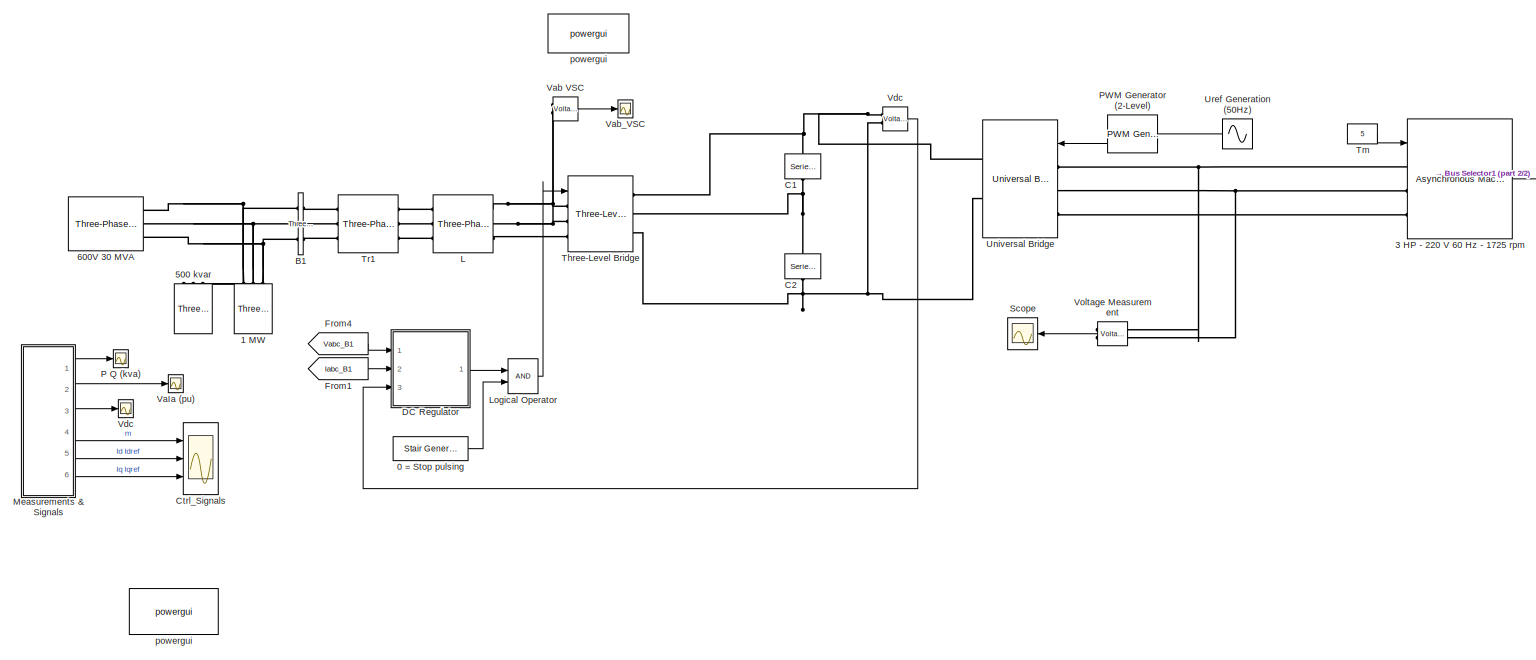
[diagram: root canvas - part 1/2, most of the canvas]
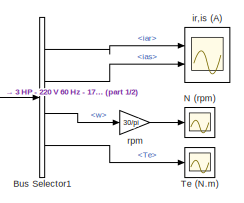
[diagram: root canvas - part 2/2, top right region]
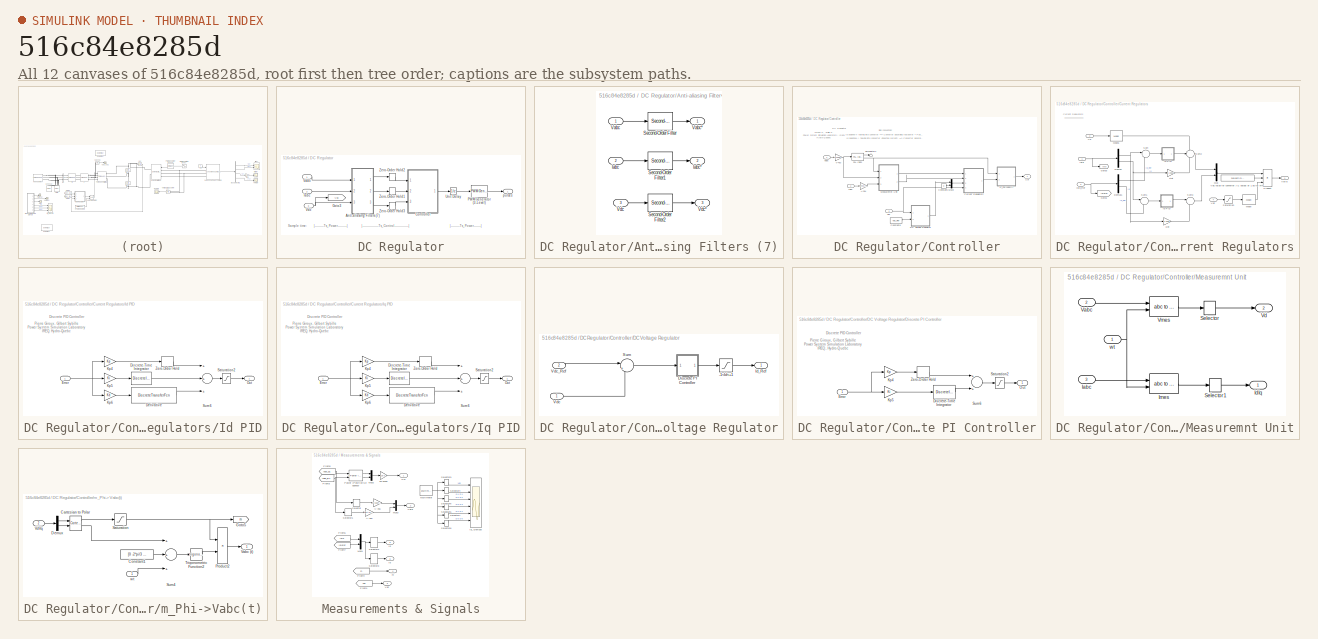
[diagram: thumbnail index - all 12 canvases of the model, root first then tree order]
MODEL slx_516c84e8285d
KIND model
CONFIG AbsTol = .05
CONFIG FixedStep = 0.001
CONFIG MaxStep = 1e-4
CONFIG MinStep = 1e-6
CONFIG RelTol = 1e-3
CONFIG SampleTimeConstraint = Unconstrained
CONFIG Solver = VariableStepAuto
CONFIG SolverMode = Auto
CONFIG SolverName = VariableStepAuto
CONFIG StartTime = 0.0
CONFIG StopTime = 3
BLOCK [Reference] 0 = Stop pulsing  REF=powerlib_meascontrol/Pulse & Signal
Generators/Stair
Generator
  Ports = [0, 1]
  SourceBlock = powerlib_meascontrol/Pulse & Signal\nGenerators/Stair\nGenerator
  SourceType = Stair Generator
BLOCK [Reference] 1 MW  REF=powerlib/Elements/Three-Phase
Series RLC Load
  AttributesFormatString = \n
  Ports = [0, 0, 0, 0, 0, 3]
  SourceBlock = powerlib/Elements/Three-Phase\nSeries RLC Load
  SourceType = Three-Phase Series RLC Load
BLOCK [Reference] 3 HP - 220 V 60 Hz - 1725 rpm  REF=powerlib/Machines/Asynchronous Machine
SI Units
  AttributesFormatString = \n
  Ports = [1, 1, 0, 0, 0, 3]
  SourceBlock = powerlib/Machines/Asynchronous Machine\nSI Units
  SourceType = Asynchronous Machine
BLOCK [Reference] 500 kvar  REF=powerlib/Elements/Three-Phase
Series RLC Load
  AttributesFormatString = \n
  Ports = [0, 0, 0, 0, 0, 3]
  SourceBlock = powerlib/Elements/Three-Phase\nSeries RLC Load
  SourceType = Three-Phase Series RLC Load
BLOCK [Reference] 600V 30 MVA  REF=powerlib/Electrical
Sources/Three-Phase Source
  Ports = [0, 0, 0, 0, 0, 0, 3]
  SourceBlock = powerlib/Electrical\nSources/Three-Phase Source
  SourceType = Three-Phase Source
BLOCK [Reference] B1  REF=powerlib/Measurements/Three-Phase
V-I Measurement
  Ports = [0, 0, 0, 0, 0, 3, 3]
  SourceBlock = powerlib/Measurements/Three-Phase\nV-I Measurement
  SourceType = Three-Phase VI Measurement
BLOCK [BusSelector] Bus Selector1
  OutputSignals = iar,ias,w,Te
  Ports = [1, 4]
BLOCK [Reference] C1  REF=powerlib/Elements/Series RLC Branch
  AttributesFormatString = \n
  Ports = [0, 0, 0, 0, 0, 1, 1]
  SourceBlock = powerlib/Elements/Series RLC Branch
  SourceType = Series RLC Branch
BLOCK [Reference] C2  REF=powerlib/Elements/Series RLC Branch
  AttributesFormatString = \n
  Ports = [0, 0, 0, 0, 0, 1, 1]
  SourceBlock = powerlib/Elements/Series RLC Branch
  SourceType = Series RLC Branch
BLOCK [Scope] Ctrl_Signals
  Floating = off
  NumInputPorts = 3
  Ports = [3]
  ScopeSpecificationString = Simulink.scopes.TimeScopeBlockCfg('CurrentConfiguration', extmgr.ConfigurationSet(extmgr.Configuration('Core','General UI',true),extmgr.Configuration('Core','Source UI',true),extmgr.Configuration('Sources','WiredSimulink',true,'DataLoggingVariableName','ScopeData1','SampleTime','Ts_Control','DataLoggingSaveFormat','Array','DataLoggingDecimation','1','DataLoggingDecimateData',true),extmgr.Configura...<+3070ch>
BLOCK [SubSystem] DC Regulator
  Ports = [3, 1]
  RequestExecContextInheritance = off
BLOCK [SubSystem] DC Regulator/Anti-aliasing Filters (7)
  Ports = [3, 3]
  RequestExecContextInheritance = off
BLOCK [Outport] DC Regulator/Anti-aliasing Filters (7)/ Vabc*
  IconDisplay = Port number
BLOCK [Outport] DC Regulator/Anti-aliasing Filters (7)/ Vdc*
  IconDisplay = Port number
  Port = 3
BLOCK [Inport] DC Regulator/Anti-aliasing Filters (7)/Iabc 
  IconDisplay = Port number
  Port = 2
  PortDimensions = 3
BLOCK [Outport] DC Regulator/Anti-aliasing Filters (7)/Iabc*
  IconDisplay = Port number
  Port = 2
BLOCK [Reference] DC Regulator/Anti-aliasing Filters (7)/Second-Order Filter  REF=powerlib_meascontrol/Filters/Second-Order
Filter
  Ports = [1, 1]
  SourceBlock = powerlib_meascontrol/Filters/Second-Order\nFilter
  SourceType = Second-Order Filter
BLOCK [Reference] DC Regulator/Anti-aliasing Filters (7)/Second-Order Filter1  REF=powerlib_meascontrol/Filters/Second-Order
Filter
  Ports = [1, 1]
  SourceBlock = powerlib_meascontrol/Filters/Second-Order\nFilter
  SourceType = Second-Order Filter
BLOCK [Reference] DC Regulator/Anti-aliasing Filters (7)/Second-Order Filter2  REF=powerlib_meascontrol/Filters/Second-Order
Filter
  Ports = [1, 1]
  SourceBlock = powerlib_meascontrol/Filters/Second-Order\nFilter
  SourceType = Second-Order Filter
BLOCK [Inport] DC Regulator/Anti-aliasing Filters (7)/Vabc
  IconDisplay = Port number
  PortDimensions = 3
BLOCK [Inport] DC Regulator/Anti-aliasing Filters (7)/Vdc 
  IconDisplay = Port number
  Port = 3
  PortDimensions = 1
BLOCK [SubSystem] DC Regulator/Controller
  Ports = [3, 1]
  RequestExecContextInheritance = off
BLOCK [Gain] DC Regulator/Controller/A->pu
  Gain = sqrt(3)*Vnom/sqrt(2)/Pnom
BLOCK [Constant] DC Regulator/Controller/Constant1
  Value = 0
BLOCK [Constant] DC Regulator/Controller/Constant6
  Value = Vdc_Ref
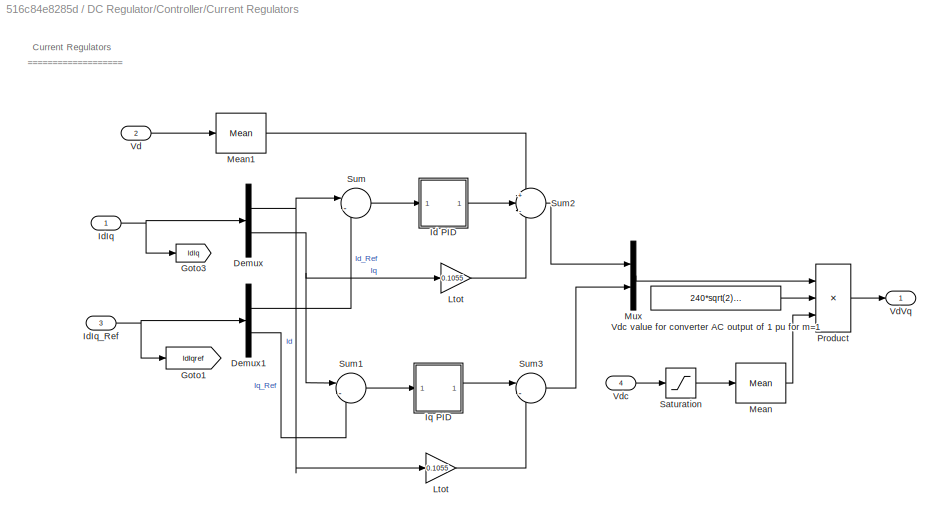
BLOCK [SubSystem] DC Regulator/Controller/Current Regulators
  Ports = [4, 1]
  RequestExecContextInheritance = off
BLOCK [Gain] DC Regulator/Controller/Current Regulators/ Ltot
  Gain = 0.1055
BLOCK [Demux] DC Regulator/Controller/Current Regulators/Demux
  Outputs = 2
  Ports = [1, 2]
BLOCK [Demux] DC Regulator/Controller/Current Regulators/Demux1
  Outputs = 2
  Ports = [1, 2]
BLOCK [Goto] DC Regulator/Controller/Current Regulators/Goto1
  GotoTag = IdIqref
  TagVisibility = global
BLOCK [Goto] DC Regulator/Controller/Current Regulators/Goto3
  GotoTag = IdIq
  TagVisibility = global
BLOCK [SubSystem] DC Regulator/Controller/Current Regulators/Id PID
  DialogController = POWERSYS.PowerSysDialog
  Ports = [1, 1]
  RequestExecContextInheritance = off
BLOCK [DiscreteTransferFcn] DC Regulator/Controller/Current Regulators/Id PID/Derivative 
  Denominator = [Ts+2*TcD Ts-2*TcD]
  InputPortMap = u0
  Numerator = [2 -2]
  Ports = [1, 1]
  SampleTime = Ts
BLOCK [DiscreteIntegrator] DC Regulator/Controller/Current Regulators/Id PID/Discrete-Time Integrator
  ICPrevOutput = DiscIntNeverNeededParam
  ICPrevScaledInput = DiscIntNeverNeededParam
  InitialCondition = Init
  LimitOutput = on
  LowerSaturationLimit = LowerLimit
  Ports = [1, 1]
  SampleTime = Ts
  UpperSaturationLimit = UpperLimit
BLOCK [Inport] DC Regulator/Controller/Current Regulators/Id PID/Error
  IconDisplay = Port number
  SampleTime = Ts
BLOCK [Gain] DC Regulator/Controller/Current Regulators/Id PID/Kp4
  Gain = Kp
  SampleTime = Ts
BLOCK [Gain] DC Regulator/Controller/Current Regulators/Id PID/Kp5
  Gain = Ki
  SampleTime = Ts
BLOCK [Gain] DC Regulator/Controller/Current Regulators/Id PID/Kp6
  Gain = Kd
  SampleTime = Ts
BLOCK [Outport] DC Regulator/Controller/Current Regulators/Id PID/Out
  IconDisplay = Port number
  InitialOutput = 0
  SampleTime = Ts
BLOCK [Saturate] DC Regulator/Controller/Current Regulators/Id PID/Saturation2
  InputPortMap = u0
  LowerLimit = LowerLimit
  Ports = [1, 1]
  SampleTime = Ts
  UpperLimit = UpperLimit
BLOCK [Sum] DC Regulator/Controller/Current Regulators/Id PID/Sum6
  Inputs = +++
  Ports = [3, 1]
  SampleTime = Ts
BLOCK [ZeroOrderHold] DC Regulator/Controller/Current Regulators/Id PID/Zero-Order Hold
  SampleTime = Ts
BLOCK [Inport] DC Regulator/Controller/Current Regulators/IdIq
  IconDisplay = Port number
  PortDimensions = 2
BLOCK [Inport] DC Regulator/Controller/Current Regulators/IdIq_Ref
  IconDisplay = Port number
  Port = 3
  PortDimensions = 2
BLOCK [SubSystem] DC Regulator/Controller/Current Regulators/Iq PID
  DialogController = POWERSYS.PowerSysDialog
  Ports = [1, 1]
  RequestExecContextInheritance = off
BLOCK [DiscreteTransferFcn] DC Regulator/Controller/Current Regulators/Iq PID/Derivative 
  Denominator = [Ts+2*TcD Ts-2*TcD]
  InputPortMap = u0
  Numerator = [2 -2]
  Ports = [1, 1]
  SampleTime = Ts
BLOCK [DiscreteIntegrator] DC Regulator/Controller/Current Regulators/Iq PID/Discrete-Time Integrator
  ICPrevOutput = DiscIntNeverNeededParam
  ICPrevScaledInput = DiscIntNeverNeededParam
  InitialCondition = Init
  LimitOutput = on
  LowerSaturationLimit = LowerLimit
  Ports = [1, 1]
  SampleTime = Ts
  UpperSaturationLimit = UpperLimit
BLOCK [Inport] DC Regulator/Controller/Current Regulators/Iq PID/Error
  IconDisplay = Port number
  SampleTime = Ts
BLOCK [Gain] DC Regulator/Controller/Current Regulators/Iq PID/Kp4
  Gain = Kp
  SampleTime = Ts
BLOCK [Gain] DC Regulator/Controller/Current Regulators/Iq PID/Kp5
  Gain = Ki
  SampleTime = Ts
BLOCK [Gain] DC Regulator/Controller/Current Regulators/Iq PID/Kp6
  Gain = Kd
  SampleTime = Ts
BLOCK [Outport] DC Regulator/Controller/Current Regulators/Iq PID/Out
  IconDisplay = Port number
  InitialOutput = 0
  SampleTime = Ts
BLOCK [Saturate] DC Regulator/Controller/Current Regulators/Iq PID/Saturation2
  InputPortMap = u0
  LowerLimit = LowerLimit
  Ports = [1, 1]
  SampleTime = Ts
  UpperLimit = UpperLimit
BLOCK [Sum] DC Regulator/Controller/Current Regulators/Iq PID/Sum6
  Inputs = +++
  Ports = [3, 1]
  SampleTime = Ts
BLOCK [ZeroOrderHold] DC Regulator/Controller/Current Regulators/Iq PID/Zero-Order Hold
  SampleTime = Ts
BLOCK [Gain] DC Regulator/Controller/Current Regulators/Ltot 
  Gain = 0.1055
BLOCK [Reference] DC Regulator/Controller/Current Regulators/Mean  REF=powerlib_meascontrol/Measurements/Mean
  Ports = [1, 1]
  SourceBlock = powerlib_meascontrol/Measurements/Mean
  SourceType = Mean
BLOCK [Reference] DC Regulator/Controller/Current Regulators/Mean1  REF=powerlib_meascontrol/Measurements/Mean
  Ports = [1, 1]
  SourceBlock = powerlib_meascontrol/Measurements/Mean
  SourceType = Mean
BLOCK [Mux] DC Regulator/Controller/Current Regulators/Mux
  DisplayOption = bar
  Inputs = 2
  Ports = [2, 1]
BLOCK [Product] DC Regulator/Controller/Current Regulators/Product
  Inputs = **/
  Ports = [3, 1]
  RndMeth = Floor
BLOCK [Saturate] DC Regulator/Controller/Current Regulators/Saturation
  InputPortMap = u0
  LowerLimit = 10
  Ports = [1, 1]
  UpperLimit = 10000
BLOCK [Sum] DC Regulator/Controller/Current Regulators/Sum
  IconShape = round
  Inputs = |-+
  Ports = [2, 1]
BLOCK [Sum] DC Regulator/Controller/Current Regulators/Sum1
  IconShape = round
  Inputs = |-+
  Ports = [2, 1]
BLOCK [Sum] DC Regulator/Controller/Current Regulators/Sum2
  IconShape = round
  Inputs = +|-|+
  Ports = [3, 1]
BLOCK [Sum] DC Regulator/Controller/Current Regulators/Sum3
  IconShape = round
  Inputs = |--
  Ports = [2, 1]
BLOCK [Inport] DC Regulator/Controller/Current Regulators/Vd
  IconDisplay = Port number
  Port = 2
BLOCK [Outport] DC Regulator/Controller/Current Regulators/VdVq
  IconDisplay = Port number
BLOCK [Inport] DC Regulator/Controller/Current Regulators/Vdc
  IconDisplay = Port number
  Port = 4
BLOCK [Constant] DC Regulator/Controller/Current Regulators/Vdc value for converter AC output of 1 pu for m=1
  Value = 240*sqrt(2)/(sqrt(3)/2)
BLOCK [SubSystem] DC Regulator/Controller/DC Voltage Regulator
  Ports = [2, 1]
  RequestExecContextInheritance = off
BLOCK [Saturate] DC Regulator/Controller/DC Voltage Regulator/-1<Id<+1
  InputPortMap = u0
  LowerLimit = -1.2
  Ports = [1, 1]
  UpperLimit = 1.2
BLOCK [SubSystem] DC Regulator/Controller/DC Voltage Regulator/Discrete PI Controller
  DialogController = POWERSYS.PowerSysDialog
  Ports = [1, 1]
  RequestExecContextInheritance = off
BLOCK [DiscreteIntegrator] DC Regulator/Controller/DC Voltage Regulator/Discrete PI Controller/Discrete-Time Integrator
  ICPrevOutput = DiscIntNeverNeededParam
  ICPrevScaledInput = DiscIntNeverNeededParam
  InitialCondition = Init
  LimitOutput = on
  LowerSaturationLimit = LowerLimit
  Ports = [1, 1]
  SampleTime = Ts
  UpperSaturationLimit = UpperLimit
BLOCK [Inport] DC Regulator/Controller/DC Voltage Regulator/Discrete PI Controller/Error
  IconDisplay = Port number
  SampleTime = Ts
BLOCK [Gain] DC Regulator/Controller/DC Voltage Regulator/Discrete PI Controller/Kp4
  Gain = Kp
  SampleTime = Ts
BLOCK [Gain] DC Regulator/Controller/DC Voltage Regulator/Discrete PI Controller/Kp5
  Gain = Ki
  SampleTime = Ts
BLOCK [Outport] DC Regulator/Controller/DC Voltage Regulator/Discrete PI Controller/Out
  IconDisplay = Port number
  InitialOutput = 0
  SampleTime = Ts
BLOCK [Saturate] DC Regulator/Controller/DC Voltage Regulator/Discrete PI Controller/Saturation2
  InputPortMap = u0
  LowerLimit = LowerLimit
  Ports = [1, 1]
  SampleTime = Ts
  UpperLimit = UpperLimit
BLOCK [Sum] DC Regulator/Controller/DC Voltage Regulator/Discrete PI Controller/Sum6
  Ports = [2, 1]
  SampleTime = Ts
BLOCK [ZeroOrderHold] DC Regulator/Controller/DC Voltage Regulator/Discrete PI Controller/Zero-Order Hold
  SampleTime = Ts
BLOCK [Outport] DC Regulator/Controller/DC Voltage Regulator/Id_Ref
  IconDisplay = Port number
  InitialOutput = 0
BLOCK [Sum] DC Regulator/Controller/DC Voltage Regulator/Sum
  IconShape = round
  Inputs = |+-
  Ports = [2, 1]
BLOCK [Inport] DC Regulator/Controller/DC Voltage Regulator/Vdc
  IconDisplay = Port number
BLOCK [Inport] DC Regulator/Controller/DC Voltage Regulator/Vdc_Ref
  IconDisplay = Port number
  Port = 2
BLOCK [Inport] DC Regulator/Controller/Iabc
  IconDisplay = Port number
  Port = 2
  PortDimensions = 3
BLOCK [SubSystem] DC Regulator/Controller/Measuremnt Unit
  Ports = [3, 2]
  RequestExecContextInheritance = off
BLOCK [Inport] DC Regulator/Controller/Measuremnt Unit/Iabc
  IconDisplay = Port number
  Port = 3
BLOCK [Outport] DC Regulator/Controller/Measuremnt Unit/IdIq
  IconDisplay = Port number
BLOCK [Reference] DC Regulator/Controller/Measuremnt Unit/Imes  REF=powerlib_meascontrol/Transformations/abc to dq0
  Ports = [2, 1]
  SourceBlock = powerlib_meascontrol/Transformations/abc to dq0
  SourceType = abc to dq0 Transformation
BLOCK [Selector] DC Regulator/Controller/Measuremnt Unit/Selector
  IndexOptions = Index vector (dialog)
  Indices = 1
  InputPortWidth = 3
  OutputSizes = 1
  Ports = [1, 1]
BLOCK [Selector] DC Regulator/Controller/Measuremnt Unit/Selector1
  IndexOptions = Index vector (dialog)
  Indices = [1 2]
  InputPortWidth = 3
  OutputSizes = 1
  Ports = [1, 1]
BLOCK [Inport] DC Regulator/Controller/Measuremnt Unit/Vabc
  IconDisplay = Port number
  Port = 2
BLOCK [Outport] DC Regulator/Controller/Measuremnt Unit/Vd
  IconDisplay = Port number
  Port = 2
BLOCK [Reference] DC Regulator/Controller/Measuremnt Unit/Vmes  REF=powerlib_meascontrol/Transformations/abc to dq0
  Ports = [2, 1]
  SourceBlock = powerlib_meascontrol/Transformations/abc to dq0
  SourceType = abc to dq0 Transformation
BLOCK [Inport] DC Regulator/Controller/Measuremnt Unit/wt
  IconDisplay = Port number
BLOCK [Mux] DC Regulator/Controller/Mux3
  DisplayOption = bar
  Inputs = 2
  Ports = [2, 1]
BLOCK [Reference] DC Regulator/Controller/PLL (3ph)  REF=powerlib_meascontrol/PLL/PLL
(3ph)
  Ports = [1, 2]
  SourceBlock = powerlib_meascontrol/PLL/PLL\n(3ph)
  SourceType = PLL (3ph)
BLOCK [Terminator] DC Regulator/Controller/Terminator4
BLOCK [Outport] DC Regulator/Controller/Ust
  IconDisplay = Port number
BLOCK [Gain] DC Regulator/Controller/V->pu
  Gain = 1/(Vnom*sqrt(2)/sqrt(3))
BLOCK [Inport] DC Regulator/Controller/Vabc
  IconDisplay = Port number
  PortDimensions = 3
BLOCK [Inport] DC Regulator/Controller/Vdc
  IconDisplay = Port number
  Port = 3
  PortDimensions = 1
BLOCK [SubSystem] DC Regulator/Controller/m_Phi->Vabc(t)
  Ports = [2, 1]
  RequestExecContextInheritance = off
BLOCK [Reference] DC Regulator/Controller/m_Phi->Vabc(t)/Cartesian to Polar  REF=simulink_extras/Transformations/Cartesian to
Polar
  Ports = [2, 2]
  SourceBlock = simulink_extras/Transformations/Cartesian to\nPolar
  SourceType = Cart2Polar
BLOCK [Constant] DC Regulator/Controller/m_Phi->Vabc(t)/Constant1
  Value = [0 -2*pi/3 2*pi/3]
BLOCK [Demux] DC Regulator/Controller/m_Phi->Vabc(t)/Demux
  Outputs = 2
  Ports = [1, 2]
BLOCK [Goto] DC Regulator/Controller/m_Phi->Vabc(t)/Goto5
  GotoTag = m
  TagVisibility = global
BLOCK [Product] DC Regulator/Controller/m_Phi->Vabc(t)/Product2
  Ports = [2, 1]
  RndMeth = Floor
BLOCK [Saturate] DC Regulator/Controller/m_Phi->Vabc(t)/Saturation
  InputPortMap = u0
  LowerLimit = 0
  Ports = [1, 1]
  UpperLimit = 1
BLOCK [Sum] DC Regulator/Controller/m_Phi->Vabc(t)/Sum4
  Inputs = +++
  Ports = [3, 1]
BLOCK [Trigonometry] DC Regulator/Controller/m_Phi->Vabc(t)/Trigonometric Function2
  Ports = [1, 1]
BLOCK [Outport] DC Regulator/Controller/m_Phi->Vabc(t)/Vabc (t)
  IconDisplay = Port number
BLOCK [Inport] DC Regulator/Controller/m_Phi->Vabc(t)/VdVq
  IconDisplay = Port number
  Port = 2
BLOCK [Inport] DC Regulator/Controller/m_Phi->Vabc(t)/wt
  IconDisplay = Port number
BLOCK [Goto] DC Regulator/Goto3
  GotoTag = Vdc
  TagVisibility = global
BLOCK [Inport] DC Regulator/Iabc
  IconDisplay = Port number
  Port = 2
  PortDimensions = 3
BLOCK [Reference] DC Regulator/PWM Generator (3-Level)  REF=powerlib_meascontrol/Pulse & Signal
Generators/PWM Generator
(3-Level)
  Ports = [1, 1]
  SourceBlock = powerlib_meascontrol/Pulse & Signal\nGenerators/PWM Generator\n(3-Level)
  SourceType = PWM Generator (3-Level)
BLOCK [UnitDelay] DC Regulator/Unit Delay
  SampleTime = Ts_Control
BLOCK [Inport] DC Regulator/Vabc
  IconDisplay = Port number
  PortDimensions = 3
BLOCK [Inport] DC Regulator/Vdc
  IconDisplay = Port number
  Port = 3
  PortDimensions = 1
BLOCK [ZeroOrderHold] DC Regulator/Zero-Order Hold1
  SampleTime = Ts_Control
BLOCK [ZeroOrderHold] DC Regulator/Zero-Order Hold2
  SampleTime = Ts_Control
BLOCK [ZeroOrderHold] DC Regulator/Zero-Order Hold3
  SampleTime = Ts_Control
BLOCK [Outport] DC Regulator/pulses
  IconDisplay = Port number
BLOCK [From] From1
  CloseFcn = tagdialog Close
  GotoTag = Iabc_B1
  TagVisibility = global
BLOCK [From] From4
  CloseFcn = tagdialog Close
  GotoTag = Vabc_B1
  TagVisibility = global
BLOCK [Reference] L  REF=powerlib/Elements/Three-Phase
Series RLC Branch
  AttributesFormatString = \n
  Ports = [0, 0, 0, 0, 0, 3, 3]
  SourceBlock = powerlib/Elements/Three-Phase\nSeries RLC Branch
  SourceType = Three-Phase Series RLC Branch
BLOCK [Logic] Logical Operator
  AllPortsSameDT = off
  OutDataTypeStr = float('double')
  Ports = [2, 1]
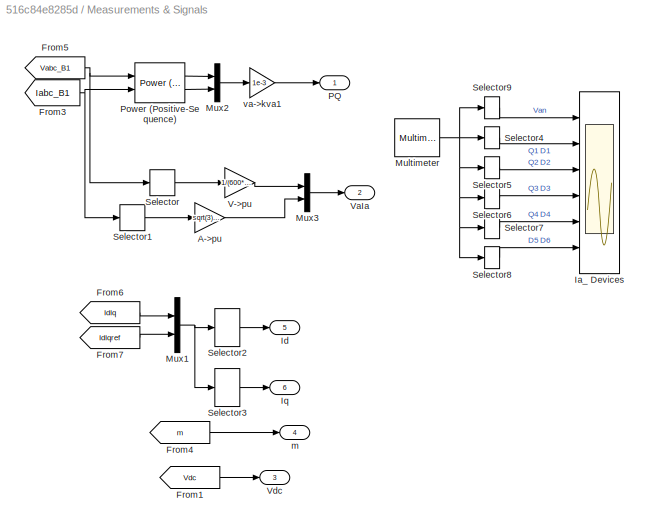
BLOCK [SubSystem] Measurements & Signals
  Ports = [0, 6]
  RequestExecContextInheritance = off
BLOCK [Gain] Measurements & Signals/A->pu
  Gain = sqrt(3)*600/sqrt(2)/500e3
BLOCK [From] Measurements & Signals/From1
  CloseFcn = tagdialog Close
  GotoTag = Vdc
  TagVisibility = global
BLOCK [From] Measurements & Signals/From3
  CloseFcn = tagdialog Close
  GotoTag = Iabc_B1
  TagVisibility = global
BLOCK [From] Measurements & Signals/From4
  CloseFcn = tagdialog Close
  GotoTag = m
  TagVisibility = global
BLOCK [From] Measurements & Signals/From5
  CloseFcn = tagdialog Close
  GotoTag = Vabc_B1
  TagVisibility = global
BLOCK [From] Measurements & Signals/From6
  CloseFcn = tagdialog Close
  GotoTag = IdIq
  TagVisibility = global
BLOCK [From] Measurements & Signals/From7
  CloseFcn = tagdialog Close
  GotoTag = IdIqref
  TagVisibility = global
BLOCK [Scope] Measurements & Signals/Ia_ Devices
  Floating = off
  NumInputPorts = 6
  Ports = [6]
  ScopeSpecificationString = Simulink.scopes.TimeScopeBlockCfg('CurrentConfiguration', extmgr.ConfigurationSet(extmgr.Configuration('Core','General UI',true),extmgr.Configuration('Core','Source UI',true),extmgr.Configuration('Sources','WiredSimulink',true,'DataLoggingVariableName','I_Q3_disc1','SampleTime','Ts_Power*2','DataLoggingSaveFormat','Array','DataLoggingDecimation','1','DataLoggingDecimateData',true),extmgr.Configura...<+5096ch>
BLOCK [Outport] Measurements & Signals/Id
  IconDisplay = Port number
  Port = 5
BLOCK [Outport] Measurements & Signals/Iq
  IconDisplay = Port number
  Port = 6
BLOCK [Reference] Measurements & Signals/Multimeter  REF=powerlib/Measurements/Multimeter
  AttributesFormatString = \n
  Ports = [0, 1]
  SourceBlock = powerlib/Measurements/Multimeter
  SourceType = MultimeterPSB
  Tag = PoWeRsYsTeMmEaSuReMeNt
BLOCK [Mux] Measurements & Signals/Mux1
  DisplayOption = bar
  Inputs = 2
  Ports = [2, 1]
BLOCK [Mux] Measurements & Signals/Mux2
  DisplayOption = bar
  Inputs = 2
  Ports = [2, 1]
BLOCK [Mux] Measurements & Signals/Mux3
  DisplayOption = bar
  Inputs = 2
  Ports = [2, 1]
BLOCK [Outport] Measurements & Signals/PQ
  IconDisplay = Port number
BLOCK [Reference] Measurements & Signals/Power (Positive-Sequence)  REF=powerlib_meascontrol/Measurements/Power
(Positive-Sequence)
  Ports = [2, 2]
  SourceBlock = powerlib_meascontrol/Measurements/Power\n(Positive-Sequence)
  SourceType = Power (Positive-Sequence)
BLOCK [Selector] Measurements & Signals/Selector
  IndexOptions = Index vector (dialog)
  Indices = 1
  InputPortWidth = 3
  OutputSizes = 1
  Ports = [1, 1]
BLOCK [Selector] Measurements & Signals/Selector1
  IndexOptions = Index vector (dialog)
  Indices = 1
  InputPortWidth = 3
  OutputSizes = 1
  Ports = [1, 1]
BLOCK [Selector] Measurements & Signals/Selector2
  IndexOptions = Index vector (dialog)
  Indices = [1 3]
  InputPortWidth = 4
  OutputSizes = 1
  Ports = [1, 1]
BLOCK [Selector] Measurements & Signals/Selector3
  IndexOptions = Index vector (dialog)
  Indices = [1 3]+1
  InputPortWidth = 4
  OutputSizes = 1
  Ports = [1, 1]
BLOCK [Selector] Measurements & Signals/Selector4
  IndexOptions = Index vector (dialog)
  Indices = [1 5]+1
  InputPortWidth = 11
  OutputSizes = 1
  Ports = [1, 1]
BLOCK [Selector] Measurements & Signals/Selector5
  IndexOptions = Index vector (dialog)
  Indices = [1 5]+2
  InputPortWidth = 11
  OutputSizes = 1
  Ports = [1, 1]
BLOCK [Selector] Measurements & Signals/Selector6
  IndexOptions = Index vector (dialog)
  Indices = [1 5]+3
  InputPortWidth = 11
  OutputSizes = 1
  Ports = [1, 1]
BLOCK [Selector] Measurements & Signals/Selector7
  IndexOptions = Index vector (dialog)
  Indices = [1 5]+4
  InputPortWidth = 11
  OutputSizes = 1
  Ports = [1, 1]
BLOCK [Selector] Measurements & Signals/Selector8
  IndexOptions = Index vector (dialog)
  Indices = [10 11]
  InputPortWidth = 11
  OutputSizes = 1
  Ports = [1, 1]
BLOCK [Selector] Measurements & Signals/Selector9
  IndexOptions = Index vector (dialog)
  Indices = 1
  InputPortWidth = 11
  OutputSizes = 1
  Ports = [1, 1]
BLOCK [Gain] Measurements & Signals/V->pu
  Gain = 1/(600*sqrt(2)/sqrt(3))
BLOCK [Outport] Measurements & Signals/VaIa
  IconDisplay = Port number
  Port = 2
BLOCK [Outport] Measurements & Signals/Vdc
  IconDisplay = Port number
  Port = 3
BLOCK [Outport] Measurements & Signals/m
  IconDisplay = Port number
  Port = 4
BLOCK [Gain] Measurements & Signals/va->kva1
  Gain = 1e-3
BLOCK [Scope] N (rpm)
  Floating = off
  NumInputPorts = 1
  Ports = [1]
  ScopeSpecificationString = Simulink.scopes.TimeScopeBlockCfg('CurrentConfiguration', extmgr.ConfigurationSet(extmgr.Configuration('Core','General UI',true,'FigureColor',[1 1 1]),extmgr.Configuration('Core','Source UI',true),extmgr.Configuration('Sources','WiredSimulink',true,'DataLoggingSaveFormat','Array','DataLoggingDecimation','1','DataLoggingDecimateData',true,'DataLoggingVariableName','ScopeData2'),extmgr.Configuration...<+1795ch>
BLOCK [Scope] P Q (kva)
  Floating = off
  NumInputPorts = 1
  Ports = [1]
  ScopeSpecificationString = Simulink.scopes.TimeScopeBlockCfg('CurrentConfiguration', extmgr.ConfigurationSet(extmgr.Configuration('Core','General UI',true),extmgr.Configuration('Core','Source UI',true),extmgr.Configuration('Sources','WiredSimulink',true,'DataLogging',true,'DataLoggingVariableName','ScopeData3','SampleTime','Ts_Control','DataLoggingSaveFormat','Array','DataLoggingDecimation','1','DataLoggingDecimateData',tru...<+1685ch>
BLOCK [Reference] PWM Generator (2-Level)  REF=powerlib_meascontrol/Pulse & Signal
Generators/PWM Generator
(2-Level)
  Ports = [1, 1]
  SourceBlock = powerlib_meascontrol/Pulse & Signal\nGenerators/PWM Generator\n(2-Level)
  SourceType = PWM Generator (2-Level)
BLOCK [Scope] Scope
  Floating = off
  NumInputPorts = 1
  Ports = [1]
  ScopeSpecificationString = Simulink.scopes.TimeScopeBlockCfg('CurrentConfiguration', extmgr.ConfigurationSet(extmgr.Configuration('Core','General UI',true),extmgr.Configuration('Core','Source UI',true),extmgr.Configuration('Sources','WiredSimulink',true,'DataLoggingVariableName','ScopeData4'),extmgr.Configuration('Visuals','Time Domain',true,'SerializedDisplays',{struct('MinYLimReal','-666.33253','MaxYLimReal','783.53969','...<+1463ch>
BLOCK [Scope] Te (N.m)
  Floating = off
  NumInputPorts = 1
  Ports = [1]
  ScopeSpecificationString = Simulink.scopes.TimeScopeBlockCfg('CurrentConfiguration', extmgr.ConfigurationSet(extmgr.Configuration('Core','General UI',true),extmgr.Configuration('Core','Source UI',true),extmgr.Configuration('Sources','WiredSimulink',true,'DataLoggingSaveFormat','Array','DataLoggingDecimation','1','DataLoggingDecimateData',true,'DataLoggingVariableName','ScopeData5'),extmgr.Configuration('Visuals','Time Domai...<+1644ch>
BLOCK [Reference] Three-Level Bridge  REF=powerlib/Power
Electronics/Three-Level Bridge
  AttributesFormatString = \n
  Ports = [1, 0, 0, 0, 0, 3, 3]
  SourceBlock = powerlib/Power\nElectronics/Three-Level Bridge
  SourceType = Three-Level Bridge
BLOCK [Constant] Tm
  Value = 5
BLOCK [Reference] Tr1  REF=powerlib/Elements/Three-Phase
Transformer
(Two Windings)
  AttributesFormatString = \n
  Ports = [0, 0, 0, 0, 0, 3, 3]
  SourceBlock = powerlib/Elements/Three-Phase\nTransformer\n(Two Windings)
  SourceType = Three-Phase Transformer (Two Windings)
BLOCK [Reference] Universal Bridge  REF=powerlib/Power
Electronics/Universal Bridge
  Ports = [1, 0, 0, 0, 0, 3, 2]
  SourceBlock = powerlib/Power\nElectronics/Universal Bridge
  SourceType = Universal Bridge
BLOCK [Sin] Uref Generation (50Hz)
  Amplitude = 0.228
  Frequency = 2*pi*40
  Phase = [ 0 -2*pi/3 2*pi/3 ]
  Ports = [0, 1]
  SampleTime = 0
BLOCK [Scope] VaIa (pu)
  Floating = off
  NumInputPorts = 1
  Ports = [1]
  ScopeSpecificationString = Simulink.scopes.TimeScopeBlockCfg('CurrentConfiguration', extmgr.ConfigurationSet(extmgr.Configuration('Core','General UI',true),extmgr.Configuration('Core','Source UI',true),extmgr.Configuration('Sources','WiredSimulink',true,'DataLogging',true,'DataLoggingVariableName','ScopeData6','DataLoggingSaveFormat','StructureWithTime','SampleTime','Ts_Power*2','DataLoggingDecimation','1','DataLoggingDecim...<+1698ch>
BLOCK [Reference] Vab VSC  REF=powerlib/Measurements/Voltage Measurement
  AttributesFormatString = \n
  Ports = [0, 1, 0, 0, 0, 2]
  SourceBlock = powerlib/Measurements/Voltage Measurement
  SourceType = Voltage Measurement
  Tag = PoWeRsYsTeMmEaSuReMeNt
BLOCK [Scope] Vab_VSC
  Floating = off
  NumInputPorts = 1
  Ports = [1]
  ScopeSpecificationString = Simulink.scopes.TimeScopeBlockCfg('CurrentConfiguration', extmgr.ConfigurationSet(extmgr.Configuration('Core','General UI',true),extmgr.Configuration('Core','Source UI',true),extmgr.Configuration('Sources','WiredSimulink',true,'DataLogging',true,'DataLoggingVariableName','ScopeData7','DataLoggingSaveFormat','StructureWithTime','SampleTime','Ts_Power','DataLoggingDecimation','1','DataLoggingDecimat...<+1695ch>
BLOCK [Scope] Vdc
  Floating = off
  NumInputPorts = 1
  Ports = [1]
  ScopeSpecificationString = Simulink.scopes.TimeScopeBlockCfg('CurrentConfiguration', extmgr.ConfigurationSet(extmgr.Configuration('Core','General UI',true),extmgr.Configuration('Core','Source UI',true),extmgr.Configuration('Sources','WiredSimulink',true,'DataLoggingVariableName','ScopeData8','SampleTime','Ts_Control','DataLoggingSaveFormat','Array','DataLoggingDecimation','1','DataLoggingDecimateData',true),extmgr.Configura...<+1730ch>
BLOCK [Reference] Vdc   REF=powerlib/Measurements/Voltage Measurement
  AttributesFormatString = \n
  Ports = [0, 1, 0, 0, 0, 2]
  SourceBlock = powerlib/Measurements/Voltage Measurement
  SourceType = Voltage Measurement
  Tag = PoWeRsYsTeMmEaSuReMeNt
BLOCK [Reference] Voltage Measurement  REF=powerlib/Measurements/Voltage Measurement
  Ports = [0, 1, 0, 0, 0, 2]
  SourceBlock = powerlib/Measurements/Voltage Measurement
  SourceType = Voltage Measurement
  UserDataPersistent = on
BLOCK [Scope] ir,is (A)
  Floating = off
  NumInputPorts = 2
  Ports = [2]
  ScopeSpecificationString = Simulink.scopes.TimeScopeBlockCfg('CurrentConfiguration', extmgr.ConfigurationSet(extmgr.Configuration('Core','General UI',true),extmgr.Configuration('Core','Source UI',true),extmgr.Configuration('Sources','WiredSimulink',true,'DataLoggingSaveFormat','Array','DataLoggingDecimation','1','DataLoggingDecimateData',true,'DataLoggingVariableName','ScopeData9'),extmgr.Configuration('Visuals','Time Domai...<+2264ch>
BLOCK [Reference] powergui  REF=powerlib/powergui
  Ports = []
  Priority = 1
  SourceBlock = powerlib/powergui
  SourceType = PSB option menu block
BLOCK [Reference] powergui   REF=powerlib/powergui
  Ports = []
  Priority = 2
  SourceBlock = powerlib/powergui
  SourceType = PSB option menu block
BLOCK [Gain] rpm
  Gain = 30/pi
ANNOTATION DC Regulator: Sample time:
ANNOTATION DC Regulator: |----------------Ts_Control--------------|
ANNOTATION DC Regulator: |---------Ts_Power---------|
ANNOTATION DC Regulator: |---------Ts_Power-------|
ANNOTATION DC Regulator/Controller: DC Regulator
ANNOTATION DC Regulator/Controller: Giroux P., Sybille G. Power System Simulation Laboratory, IREQ Hydro-Quebec
ANNOTATION DC Regulator/Controller: Id positive(+) flowing into converter ==> Converter absorbing real power = P positive(+)
ANNOTATION DC Regulator/Controller: Iq negative(-) flowing into converter (inductive current) ==> Converter absorbing reactive power = Q positive(+)
ANNOTATION DC Regulator/Controller: Sign convention:
ANNOTATION DC Regulator/Controller/Current Regulators: ===================
ANNOTATION DC Regulator/Controller/Current Regulators: Current Regulators
ANNOTATION DC Regulator/Controller/Current Regulators/Id PID: Discrete PID Controller
ANNOTATION DC Regulator/Controller/Current Regulators/Id PID: Pierre Giroux, Gilbert Sybille Power System Simulation Laboratory IREQ, Hydro-Quebc
ANNOTATION DC Regulator/Controller/Current Regulators/Iq PID: Discrete PID Controller
ANNOTATION DC Regulator/Controller/Current Regulators/Iq PID: Pierre Giroux, Gilbert Sybille Power System Simulation Laboratory IREQ, Hydro-Quebc
ANNOTATION DC Regulator/Controller/DC Voltage Regulator/Discrete PI Controller: Discrete PID Controller
ANNOTATION DC Regulator/Controller/DC Voltage Regulator/Discrete PI Controller: Pierre Giroux, Gilbert Sybille Power System Simulation Laboratory IREQ, Hydro-Quebc
LINE 0 = Stop pulsing:1 -> Logical Operator:2
LINE 3 HP - 220 V 60 Hz - 1725 rpm:1 -> Bus Selector1:1
LINE Bus Selector1:1 -> ir,is (A):1
LINE Bus Selector1:2 -> ir,is (A):2
LINE Bus Selector1:3 -> rpm:1
LINE Bus Selector1:4 -> Te (N.m):1
LINE DC Regulator/Anti-aliasing Filters (7)/Iabc :1 -> DC Regulator/Anti-aliasing Filters (7)/Second-Order Filter1:1
LINE DC Regulator/Anti-aliasing Filters (7)/Second-Order Filter1:1 -> DC Regulator/Anti-aliasing Filters (7)/Iabc*:1
LINE DC Regulator/Anti-aliasing Filters (7)/Second-Order Filter2:1 -> DC Regulator/Anti-aliasing Filters (7)/ Vdc*:1
LINE DC Regulator/Anti-aliasing Filters (7)/Second-Order Filter:1 -> DC Regulator/Anti-aliasing Filters (7)/ Vabc*:1
LINE DC Regulator/Anti-aliasing Filters (7)/Vabc:1 -> DC Regulator/Anti-aliasing Filters (7)/Second-Order Filter:1
LINE DC Regulator/Anti-aliasing Filters (7)/Vdc :1 -> DC Regulator/Anti-aliasing Filters (7)/Second-Order Filter2:1
LINE DC Regulator/Anti-aliasing Filters (7):1 -> DC Regulator/Zero-Order Hold2:1
LINE DC Regulator/Anti-aliasing Filters (7):2 -> DC Regulator/Zero-Order Hold1:1
LINE DC Regulator/Anti-aliasing Filters (7):3 -> DC Regulator/Zero-Order Hold3:1
LINE DC Regulator/Controller/A->pu:1 -> DC Regulator/Controller/Measuremnt Unit:3
LINE DC Regulator/Controller/Constant1:1 -> DC Regulator/Controller/Mux3:2
LINE DC Regulator/Controller/Constant6:1 -> DC Regulator/Controller/DC Voltage Regulator:2
LINE DC Regulator/Controller/Current Regulators/ Ltot:1 -> DC Regulator/Controller/Current Regulators/Sum3:2
LINE DC Regulator/Controller/Current Regulators/Demux1:1 -> DC Regulator/Controller/Current Regulators/Sum:2
LINE DC Regulator/Controller/Current Regulators/Demux1:2 -> DC Regulator/Controller/Current Regulators/Sum1:2
NET DC Regulator/Controller/Current Regulators/Demux:1 -> DC Regulator/Controller/Current Regulators/ Ltot:1, DC Regulator/Controller/Current Regulators/Sum:1
NET DC Regulator/Controller/Current Regulators/Demux:2 -> DC Regulator/Controller/Current Regulators/Ltot :1, DC Regulator/Controller/Current Regulators/Sum1:1
LINE DC Regulator/Controller/Current Regulators/Id PID:1 -> DC Regulator/Controller/Current Regulators/Sum2:2
NET DC Regulator/Controller/Current Regulators/IdIq:1 -> DC Regulator/Controller/Current Regulators/Demux:1, DC Regulator/Controller/Current Regulators/Goto3:1
NET DC Regulator/Controller/Current Regulators/IdIq_Ref:1 -> DC Regulator/Controller/Current Regulators/Demux1:1, DC Regulator/Controller/Current Regulators/Goto1:1
LINE DC Regulator/Controller/Current Regulators/Iq PID:1 -> DC Regulator/Controller/Current Regulators/Sum3:1
LINE DC Regulator/Controller/Current Regulators/Ltot :1 -> DC Regulator/Controller/Current Regulators/Sum2:3
LINE DC Regulator/Controller/Current Regulators/Mean1:1 -> DC Regulator/Controller/Current Regulators/Sum2:1
LINE DC Regulator/Controller/Current Regulators/Mean:1 -> DC Regulator/Controller/Current Regulators/Product:3
LINE DC Regulator/Controller/Current Regulators/Mux:1 -> DC Regulator/Controller/Current Regulators/Product:1
LINE DC Regulator/Controller/Current Regulators/Product:1 -> DC Regulator/Controller/Current Regulators/VdVq:1
LINE DC Regulator/Controller/Current Regulators/Saturation:1 -> DC Regulator/Controller/Current Regulators/Mean:1
LINE DC Regulator/Controller/Current Regulators/Sum1:1 -> DC Regulator/Controller/Current Regulators/Iq PID:1
LINE DC Regulator/Controller/Current Regulators/Sum2:1 -> DC Regulator/Controller/Current Regulators/Mux:1
LINE DC Regulator/Controller/Current Regulators/Sum3:1 -> DC Regulator/Controller/Current Regulators/Mux:2
LINE DC Regulator/Controller/Current Regulators/Sum:1 -> DC Regulator/Controller/Current Regulators/Id PID:1
LINE DC Regulator/Controller/Current Regulators/Vd:1 -> DC Regulator/Controller/Current Regulators/Mean1:1
LINE DC Regulator/Controller/Current Regulators/Vdc value for converter AC output of 1 pu for m=1:1 -> DC Regulator/Controller/Current Regulators/Product:2
LINE DC Regulator/Controller/Current Regulators/Vdc:1 -> DC Regulator/Controller/Current Regulators/Saturation:1
LINE DC Regulator/Controller/Current Regulators:1 -> DC Regulator/Controller/m_Phi->Vabc(t):2
LINE DC Regulator/Controller/DC Voltage Regulator/-1<Id<+1:1 -> DC Regulator/Controller/DC Voltage Regulator/Id_Ref:1
LINE DC Regulator/Controller/DC Voltage Regulator/Discrete PI Controller:1 -> DC Regulator/Controller/DC Voltage Regulator/-1<Id<+1:1
LINE DC Regulator/Controller/DC Voltage Regulator/Sum:1 -> DC Regulator/Controller/DC Voltage Regulator/Discrete PI Controller:1
LINE DC Regulator/Controller/DC Voltage Regulator/Vdc:1 -> DC Regulator/Controller/DC Voltage Regulator/Sum:2
LINE DC Regulator/Controller/DC Voltage Regulator/Vdc_Ref:1 -> DC Regulator/Controller/DC Voltage Regulator/Sum:1
LINE DC Regulator/Controller/DC Voltage Regulator:1 -> DC Regulator/Controller/Mux3:1
LINE DC Regulator/Controller/Iabc:1 -> DC Regulator/Controller/A->pu:1
LINE DC Regulator/Controller/Measuremnt Unit/Iabc:1 -> DC Regulator/Controller/Measuremnt Unit/Imes:1
LINE DC Regulator/Controller/Measuremnt Unit/Imes:1 -> DC Regulator/Controller/Measuremnt Unit/Selector1:1
LINE DC Regulator/Controller/Measuremnt Unit/Selector1:1 -> DC Regulator/Controller/Measuremnt Unit/IdIq:1
LINE DC Regulator/Controller/Measuremnt Unit/Selector:1 -> DC Regulator/Controller/Measuremnt Unit/Vd:1
LINE DC Regulator/Controller/Measuremnt Unit/Vabc:1 -> DC Regulator/Controller/Measuremnt Unit/Vmes:1
LINE DC Regulator/Controller/Measuremnt Unit/Vmes:1 -> DC Regulator/Controller/Measuremnt Unit/Selector:1
NET DC Regulator/Controller/Measuremnt Unit/wt:1 -> DC Regulator/Controller/Measuremnt Unit/Imes:2, DC Regulator/Controller/Measuremnt Unit/Vmes:2
LINE DC Regulator/Controller/Measuremnt Unit:1 -> DC Regulator/Controller/Current Regulators:1
LINE DC Regulator/Controller/Measuremnt Unit:2 -> DC Regulator/Controller/Current Regulators:2
LINE DC Regulator/Controller/Mux3:1 -> DC Regulator/Controller/Current Regulators:3
LINE DC Regulator/Controller/PLL (3ph):1 -> DC Regulator/Controller/Terminator4:1
NET DC Regulator/Controller/PLL (3ph):2 -> DC Regulator/Controller/Measuremnt Unit:1, DC Regulator/Controller/m_Phi->Vabc(t):1
NET DC Regulator/Controller/V->pu:1 -> DC Regulator/Controller/Measuremnt Unit:2, DC Regulator/Controller/PLL (3ph):1
LINE DC Regulator/Controller/Vabc:1 -> DC Regulator/Controller/V->pu:1
NET DC Regulator/Controller/Vdc:1 -> DC Regulator/Controller/Current Regulators:4, DC Regulator/Controller/DC Voltage Regulator:1
LINE DC Regulator/Controller/m_Phi->Vabc(t)/Cartesian to Polar:1 -> DC Regulator/Controller/m_Phi->Vabc(t)/Saturation:1
LINE DC Regulator/Controller/m_Phi->Vabc(t)/Cartesian to Polar:2 -> DC Regulator/Controller/m_Phi->Vabc(t)/Sum4:1
LINE DC Regulator/Controller/m_Phi->Vabc(t)/Constant1:1 -> DC Regulator/Controller/m_Phi->Vabc(t)/Sum4:2
LINE DC Regulator/Controller/m_Phi->Vabc(t)/Demux:1 -> DC Regulator/Controller/m_Phi->Vabc(t)/Cartesian to Polar:1
LINE DC Regulator/Controller/m_Phi->Vabc(t)/Demux:2 -> DC Regulator/Controller/m_Phi->Vabc(t)/Cartesian to Polar:2
LINE DC Regulator/Controller/m_Phi->Vabc(t)/Product2:1 -> DC Regulator/Controller/m_Phi->Vabc(t)/Vabc (t):1
NET DC Regulator/Controller/m_Phi->Vabc(t)/Saturation:1 -> DC Regulator/Controller/m_Phi->Vabc(t)/Goto5:1, DC Regulator/Controller/m_Phi->Vabc(t)/Product2:1
LINE DC Regulator/Controller/m_Phi->Vabc(t)/Sum4:1 -> DC Regulator/Controller/m_Phi->Vabc(t)/Trigonometric Function2:1
LINE DC Regulator/Controller/m_Phi->Vabc(t)/Trigonometric Function2:1 -> DC Regulator/Controller/m_Phi->Vabc(t)/Product2:2
LINE DC Regulator/Controller/m_Phi->Vabc(t)/VdVq:1 -> DC Regulator/Controller/m_Phi->Vabc(t)/Demux:1
LINE DC Regulator/Controller/m_Phi->Vabc(t)/wt:1 -> DC Regulator/Controller/m_Phi->Vabc(t)/Sum4:3
LINE DC Regulator/Controller/m_Phi->Vabc(t):1 -> DC Regulator/Controller/Ust:1
LINE DC Regulator/Controller:1 -> DC Regulator/Unit Delay:1
LINE DC Regulator/Iabc:1 -> DC Regulator/Anti-aliasing Filters (7):2
LINE DC Regulator/PWM Generator (3-Level):1 -> DC Regulator/pulses:1
LINE DC Regulator/Unit Delay:1 -> DC Regulator/PWM Generator (3-Level):1
LINE DC Regulator/Vabc:1 -> DC Regulator/Anti-aliasing Filters (7):1
NET DC Regulator/Vdc:1 -> DC Regulator/Anti-aliasing Filters (7):3, DC Regulator/Goto3:1
LINE DC Regulator/Zero-Order Hold1:1 -> DC Regulator/Controller:2
LINE DC Regulator/Zero-Order Hold2:1 -> DC Regulator/Controller:1
LINE DC Regulator/Zero-Order Hold3:1 -> DC Regulator/Controller:3
LINE DC Regulator:1 -> Logical Operator:1
LINE From1:1 -> DC Regulator:2
LINE From4:1 -> DC Regulator:1
LINE Logical Operator:1 -> Three-Level Bridge:1
LINE Measurements & Signals/A->pu:1 -> Measurements & Signals/Mux3:2
LINE Measurements & Signals/From1:1 -> Measurements & Signals/Vdc:1
NET Measurements & Signals/From3:1 -> Measurements & Signals/Power (Positive-Sequence):2, Measurements & Signals/Selector1:1
LINE Measurements & Signals/From4:1 -> Measurements & Signals/m:1
NET Measurements & Signals/From5:1 -> Measurements & Signals/Power (Positive-Sequence):1, Measurements & Signals/Selector:1
LINE Measurements & Signals/From6:1 -> Measurements & Signals/Mux1:1
LINE Measurements & Signals/From7:1 -> Measurements & Signals/Mux1:2
NET Measurements & Signals/Multimeter:1 -> Measurements & Signals/Selector4:1, Measurements & Signals/Selector5:1, Measurements & Signals/Selector6:1, Measurements & Signals/Selector7:1, Measurements & Signals/Selector8:1, Measurements & Signals/Selector9:1
NET Measurements & Signals/Mux1:1 -> Measurements & Signals/Selector2:1, Measurements & Signals/Selector3:1
LINE Measurements & Signals/Mux2:1 -> Measurements & Signals/va->kva1:1
LINE Measurements & Signals/Mux3:1 -> Measurements & Signals/VaIa:1
LINE Measurements & Signals/Power (Positive-Sequence):1 -> Measurements & Signals/Mux2:1
LINE Measurements & Signals/Power (Positive-Sequence):2 -> Measurements & Signals/Mux2:2
LINE Measurements & Signals/Selector1:1 -> Measurements & Signals/A->pu:1
LINE Measurements & Signals/Selector2:1 -> Measurements & Signals/Id:1
LINE Measurements & Signals/Selector3:1 -> Measurements & Signals/Iq:1
LINE Measurements & Signals/Selector4:1 -> Measurements & Signals/Ia_ Devices:2
LINE Measurements & Signals/Selector5:1 -> Measurements & Signals/Ia_ Devices:3
LINE Measurements & Signals/Selector6:1 -> Measurements & Signals/Ia_ Devices:4
LINE Measurements & Signals/Selector7:1 -> Measurements & Signals/Ia_ Devices:5
LINE Measurements & Signals/Selector8:1 -> Measurements & Signals/Ia_ Devices:6
LINE Measurements & Signals/Selector9:1 -> Measurements & Signals/Ia_ Devices:1
LINE Measurements & Signals/Selector:1 -> Measurements & Signals/V->pu:1
LINE Measurements & Signals/V->pu:1 -> Measurements & Signals/Mux3:1
LINE Measurements & Signals/va->kva1:1 -> Measurements & Signals/PQ:1
LINE Measurements & Signals:1 -> P Q (kva):1
LINE Measurements & Signals:2 -> VaIa (pu):1
LINE Measurements & Signals:3 -> Vdc:1
LINE Measurements & Signals:4 -> Ctrl_Signals:1
LINE Measurements & Signals:5 -> Ctrl_Signals:2
LINE Measurements & Signals:6 -> Ctrl_Signals:3
LINE PWM Generator (2-Level):1 -> Universal Bridge:1
LINE Tm:1 -> 3 HP - 220 V 60 Hz - 1725 rpm:1
LINE Uref Generation (50Hz):1 -> PWM Generator (2-Level):1
LINE Vab VSC:1 -> Vab_VSC:1
LINE Vdc :1 -> DC Regulator:3
LINE Voltage Measurement:1 -> Scope:1
LINE rpm:1 -> N (rpm):1
PNET net1: 1 MW:LConn1 -- 500 kvar:LConn1 -- 600V 30 MVA:RConn1 -- B1:LConn1
PNET net2: 1 MW:LConn2 -- 500 kvar:LConn2 -- 600V 30 MVA:RConn2 -- B1:LConn2
PNET net3: 1 MW:LConn3 -- 500 kvar:LConn3 -- 600V 30 MVA:RConn3 -- B1:LConn3
PNET net4: 3 HP - 220 V 60 Hz - 1725 rpm:LConn1 -- Universal Bridge:LConn1 -- Voltage Measurement:LConn1
PNET net5: 3 HP - 220 V 60 Hz - 1725 rpm:LConn2 -- Universal Bridge:LConn2 -- Voltage Measurement:LConn2
PLINE 3 HP - 220 V 60 Hz - 1725 rpm:LConn3 -- Universal Bridge:LConn3
PLINE B1:RConn1 -- Tr1:LConn1
PLINE B1:RConn2 -- Tr1:LConn2
PLINE B1:RConn3 -- Tr1:LConn3
PNET net6: C1:LConn1 -- Three-Level Bridge:RConn1 -- Universal Bridge:RConn1 -- Vdc :LConn1
PNET net7: C1:RConn1 -- C2:LConn1 -- Three-Level Bridge:RConn2
PNET net8: C2:RConn1 -- Three-Level Bridge:RConn3 -- Universal Bridge:RConn2 -- Vdc :LConn2
PLINE L:LConn1 -- Tr1:RConn1
PLINE L:LConn2 -- Tr1:RConn2
PLINE L:LConn3 -- Tr1:RConn3
PNET net9: L:RConn1 -- Three-Level Bridge:LConn1 -- Vab VSC:LConn1
PNET net10: L:RConn2 -- Three-Level Bridge:LConn2 -- Vab VSC:LConn2
PLINE L:RConn3 -- Three-Level Bridge:LConn3
note: NET lines group one-source signal fan-out (src -> all destinations, sorted); 1:1 wires keep LINE; PNET lines group multi-terminal physical nets as a canonical sorted terminal list (undirected conserving connections); 2-terminal nets keep the pairwise PLINE form
